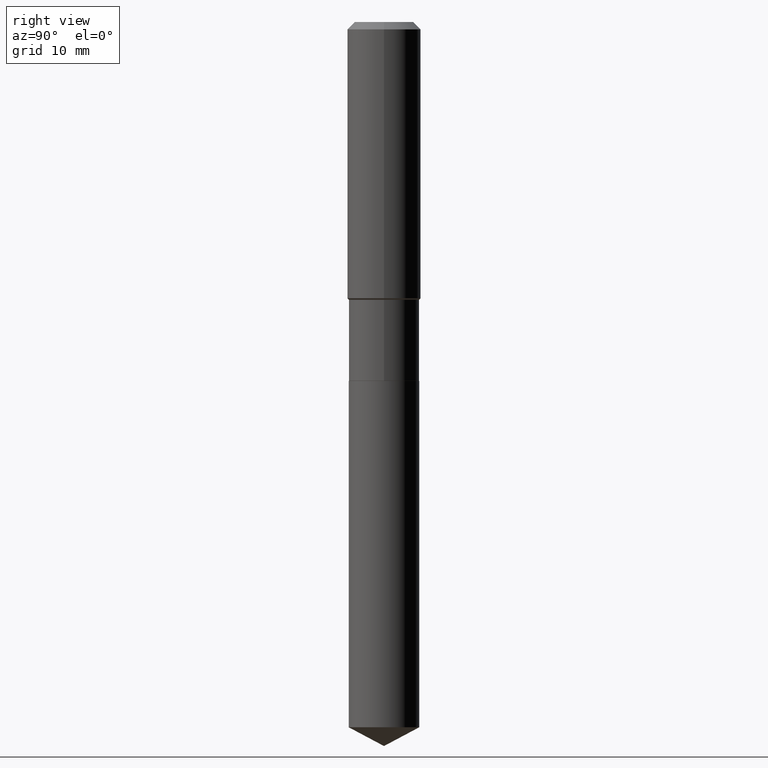
[diagram: clean part render]
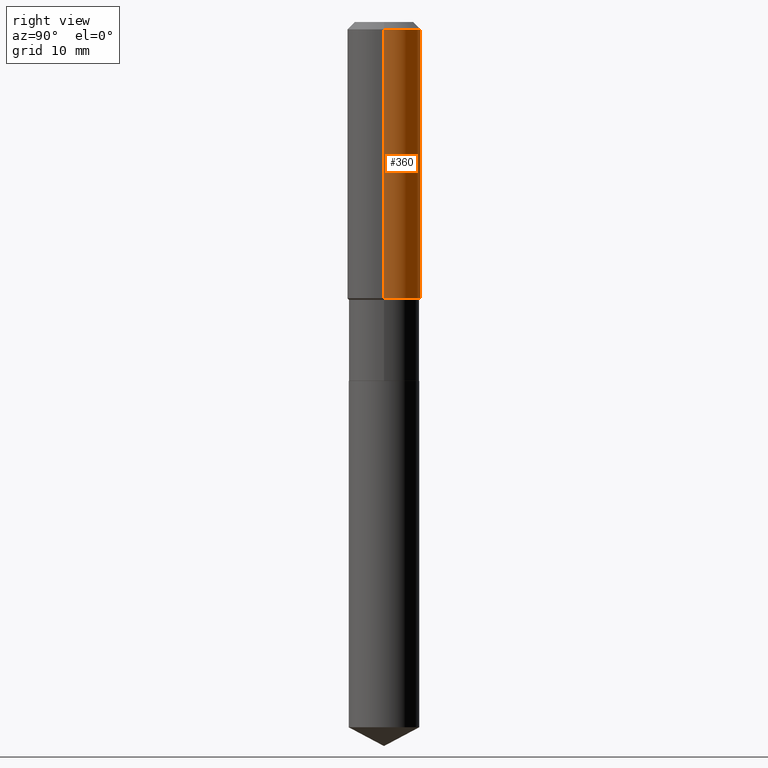
[diagram: same view with one face highlighted and labeled with its STEP entity id]
A machine part, right view. The second image highlights one B-rep face of the part: STEP entity #360.
In plain terms, the highlighted cylindrical surface (partial cylindrical patch) has radius 5.9995 mm, axis along (-0, 0, 1).
Its self-contained STEP definition (entity closure, byte-faithful):
#2 = DIRECTION ( 'NONE',  ( 1.000000000000000000, -6.982962677686266711E-15, 0.000000000000000000 ) ) ;
#8 = CARTESIAN_POINT ( 'NONE',  ( 1.155239464041865506E-30, -1.649375784469511859E-16, -0.04724000000000028177 ) ) ;
#9 = VERTEX_POINT ( 'NONE', #435 ) ;
#23 = CARTESIAN_POINT ( 'NONE',  ( -0.2362000000000002153, -4.511047027501882961E-15, -1.772699999999999054 ) ) ;
#28 = ORIENTED_EDGE ( 'NONE', *, *, #331, .F. ) ;
#42 = DIRECTION ( 'NONE',  ( -2.445468806185136877E-29, 3.491481338843145188E-15, 1.000000000000000000 ) ) ;
#59 = AXIS2_PLACEMENT_3D ( 'NONE', #317, #90, #193 ) ;
#76 = ORIENTED_EDGE ( 'NONE', *, *, #281, .T. ) ;
#90 = DIRECTION ( 'NONE',  ( -2.445468806185136597E-29, 3.491481338843145583E-15, 1.000000000000000000 ) ) ;
#116 = VECTOR ( 'NONE', #274, 39.37007874015748143 ) ;
#133 = CARTESIAN_POINT ( 'NONE',  ( 4.335082552724389227E-29, -6.189348969367240933E-15, -1.772699999999999054 ) ) ;
#148 = EDGE_CURVE ( 'NONE', #313, #251, #165, .T. ) ;
#152 = EDGE_CURVE ( 'NONE', #163, #9, #158, .T. ) ;
#156 = DIRECTION ( 'NONE',  ( -2.445468806185136597E-29, 3.491481338843145583E-15, 1.000000000000000000 ) ) ;
#158 = LINE ( 'NONE', #373, #339 ) ;
#163 = VERTEX_POINT ( 'NONE', #23 ) ;
#165 = LINE ( 'NONE', #410, #116 ) ;
#170 = CARTESIAN_POINT ( 'NONE',  ( 0.2362000000000002153, -7.838724753836739036E-15, -1.772699999999999054 ) ) ;
#193 = DIRECTION ( 'NONE',  ( 1.000000000000000000, -6.982962677686266711E-15, 4.876176775795935793E-29 ) ) ;
#199 = DIRECTION ( 'NONE',  ( 1.000000000000000000, -6.982962677686266711E-15, 0.000000000000000000 ) ) ;
#210 = AXIS2_PLACEMENT_3D ( 'NONE', #8, #156, #2 ) ;
#243 = EDGE_LOOP ( 'NONE', ( #76, #414, #28, #489 ) ) ;
#244 = CIRCLE ( 'NONE', #210, 0.2361999999999999933 ) ;
#251 = VERTEX_POINT ( 'NONE', #307 ) ;
#272 = DIRECTION ( 'NONE',  ( -2.445468806185136597E-29, 3.491481338843145583E-15, 1.000000000000000000 ) ) ;
#274 = DIRECTION ( 'NONE',  ( -2.445468806185136877E-29, 3.491481338843145188E-15, 1.000000000000000000 ) ) ;
#281 = EDGE_CURVE ( 'NONE', #313, #163, #479, .T. ) ;
#307 = CARTESIAN_POINT ( 'NONE',  ( 0.2361999999999999933, -1.814313362916447440E-15, -0.04724000000000028177 ) ) ;
#313 = VERTEX_POINT ( 'NONE', #170 ) ;
#317 = CARTESIAN_POINT ( 'NONE',  ( 0.000000000000000000, 0.000000000000000000, 0.000000000000000000 ) ) ;
#331 = EDGE_CURVE ( 'NONE', #251, #9, #244, .T. ) ;
#338 = FACE_OUTER_BOUND ( 'NONE', #243, .T. ) ;
#339 = VECTOR ( 'NONE', #42, 39.37007874015748143 ) ;
#360 = ADVANCED_FACE ( 'NONE', ( #338 ), #459, .T. ) ;
#373 = CARTESIAN_POINT ( 'NONE',  ( -0.2362000000000001043, 1.678301941865357380E-15, -1.161852468318209317E-29 ) ) ;
#410 = CARTESIAN_POINT ( 'NONE',  ( 0.2362000000000001043, -1.649375784469496920E-15, 1.151752954443000508E-29 ) ) ;
#414 = ORIENTED_EDGE ( 'NONE', *, *, #152, .T. ) ;
#417 = AXIS2_PLACEMENT_3D ( 'NONE', #133, #272, #199 ) ;
#435 = CARTESIAN_POINT ( 'NONE',  ( -0.2361999999999999933, -1.498841332041738346E-15, -0.04724000000000028177 ) ) ;
#459 = CYLINDRICAL_SURFACE ( 'NONE', #59, 0.2362000000000001043 ) ;
#479 = CIRCLE ( 'NONE', #417, 0.2362000000000002153 ) ;
#489 = ORIENTED_EDGE ( 'NONE', *, *, #148, .F. ) ;